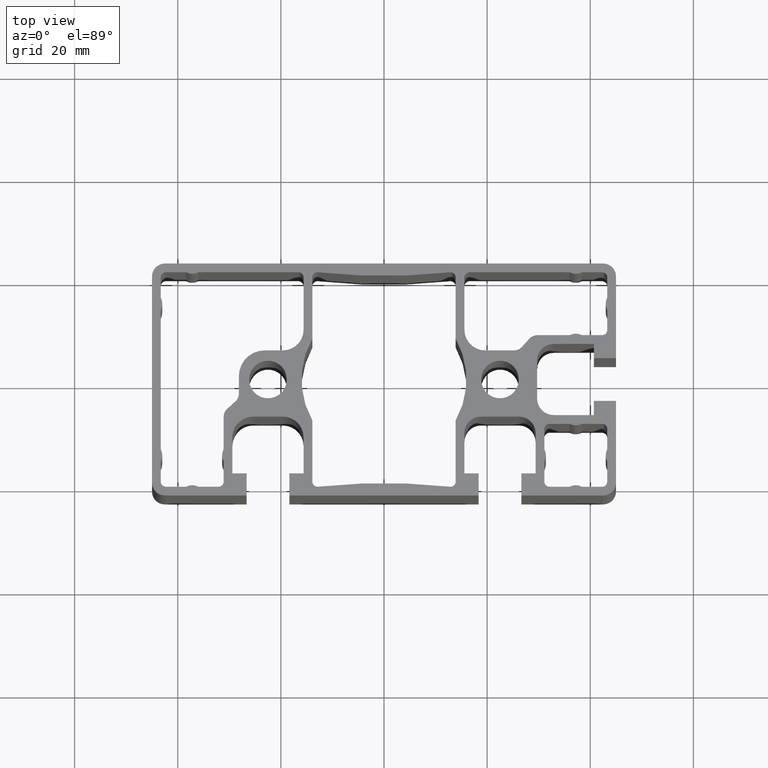
[diagram: clean part render]
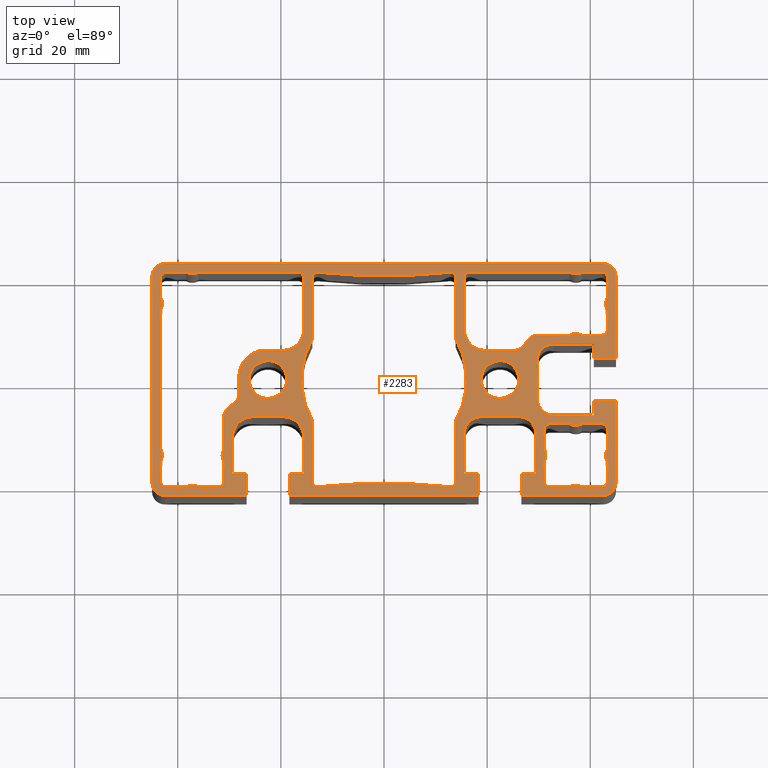
[diagram: same view with one face highlighted and labeled with its STEP entity id]
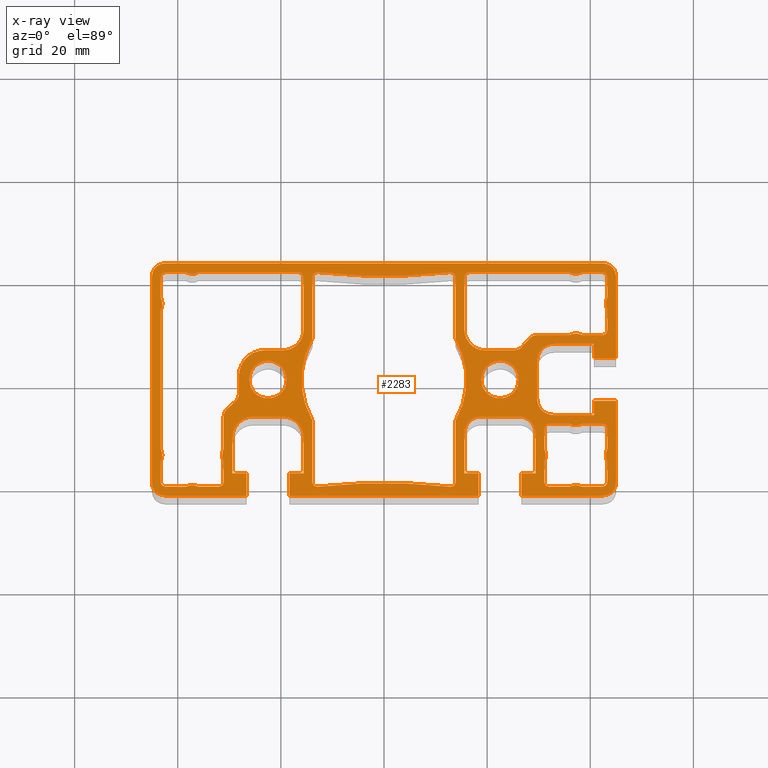
[diagram: x-ray of the same camera — body ghosted, the highlighted face saturated]
A machine part, top view. The second image highlights one B-rep face of the part: STEP entity #2283.
The next image is the same camera in x-ray: the body ghosted, the highlighted face saturated — about 0% of this face is hidden behind the body in this view.
In plain terms, the highlighted planar face has unit normal (0, 0, 1).
Its self-contained STEP definition (entity closure, byte-faithful):
#17=FACE_BOUND('',#314,.T.);
#18=FACE_BOUND('',#315,.T.);
#19=FACE_BOUND('',#316,.T.);
#20=FACE_BOUND('',#317,.T.);
#21=FACE_BOUND('',#318,.T.);
#22=FACE_BOUND('',#319,.T.);
#87=PLANE('',#2491);
#197=FACE_OUTER_BOUND('',#313,.T.);
#313=EDGE_LOOP('',(#1873,#1874,#1875,#1876,#1877,#1878,#1879,#1880,#1881,
#1882,#1883,#1884,#1885,#1886,#1887,#1888,#1889,#1890,#1891,#1892,#1893,
#1894,#1895,#1896,#1897,#1898,#1899,#1900,#1901,#1902,#1903,#1904,#1905,
#1906,#1907,#1908,#1909,#1910));
#314=EDGE_LOOP('',(#1911,#1912,#1913,#1914,#1915,#1916,#1917,#1918,#1919,
#1920,#1921,#1922,#1923,#1924,#1925,#1926));
#315=EDGE_LOOP('',(#1927));
#316=EDGE_LOOP('',(#1928));
#317=EDGE_LOOP('',(#1929,#1930,#1931,#1932,#1933,#1934,#1935,#1936,#1937,
#1938,#1939,#1940,#1941,#1942,#1943,#1944,#1945,#1946));
#318=EDGE_LOOP('',(#1947,#1948,#1949,#1950,#1951,#1952,#1953,#1954,#1955,
#1956,#1957,#1958));
#319=EDGE_LOOP('',(#1959,#1960,#1961,#1962,#1963,#1964,#1965,#1966,#1967,
#1968,#1969,#1970,#1971,#1972,#1973,#1974,#1975,#1976,#1977,#1978,#1979,
#1980,#1981,#1982,#1983,#1984));
#337=LINE('',#3185,#571);
#341=LINE('',#3197,#575);
#345=LINE('',#3209,#579);
#349=LINE('',#3221,#583);
#353=LINE('',#3233,#587);
#357=LINE('',#3245,#591);
#361=LINE('',#3257,#595);
#365=LINE('',#3269,#599);
#369=LINE('',#3281,#603);
#373=LINE('',#3293,#607);
#377=LINE('',#3305,#611);
#381=LINE('',#3317,#615);
#385=LINE('',#3328,#619);
#389=LINE('',#3341,#623);
#395=LINE('',#3365,#629);
#399=LINE('',#3377,#633);
#405=LINE('',#3400,#639);
#407=LINE('',#3405,#641);
#412=LINE('',#3419,#646);
#416=LINE('',#3431,#650);
#420=LINE('',#3443,#654);
#424=LINE('',#3455,#658);
#428=LINE('',#3467,#662);
#432=LINE('',#3479,#666);
#436=LINE('',#3491,#670);
#440=LINE('',#3503,#674);
#443=LINE('',#3518,#677);
#447=LINE('',#3527,#681);
#451=LINE('',#3535,#685);
#454=LINE('',#3541,#688);
#458=LINE('',#3553,#692);
#462=LINE('',#3565,#696);
#465=LINE('',#3570,#699);
#467=LINE('',#3575,#701);
#471=LINE('',#3584,#705);
#475=LINE('',#3592,#709);
#478=LINE('',#3598,#712);
#482=LINE('',#3610,#716);
#486=LINE('',#3622,#720);
#489=LINE('',#3627,#723);
#491=LINE('',#3632,#725);
#496=LINE('',#3646,#730);
#499=LINE('',#3652,#733);
#502=LINE('',#3658,#736);
#505=LINE('',#3665,#739);
#509=LINE('',#3673,#743);
#512=LINE('',#3679,#746);
#515=LINE('',#3694,#749);
#520=LINE('',#3708,#754);
#524=LINE('',#3720,#758);
#528=LINE('',#3732,#762);
#532=LINE('',#3744,#766);
#536=LINE('',#3756,#770);
#540=LINE('',#3768,#774);
#544=LINE('',#3780,#778);
#549=LINE('',#3792,#783);
#550=LINE('',#3795,#784);
#553=LINE('',#3801,#787);
#556=LINE('',#3808,#790);
#557=LINE('',#3812,#791);
#558=LINE('',#3816,#792);
#559=LINE('',#3818,#793);
#571=VECTOR('',#2521,3.91256579129625);
#575=VECTOR('',#2533,3.91256579129628);
#579=VECTOR('',#2545,3.91256579129605);
#583=VECTOR('',#2557,27.0251315825923);
#587=VECTOR('',#2569,3.91256579129619);
#591=VECTOR('',#2581,3.91256579129608);
#595=VECTOR('',#2593,19.4125657912961);
#599=VECTOR('',#2605,10.15);
#603=VECTOR('',#2617,3.54999999999999);
#607=VECTOR('',#2629,3.40954262938306);
#611=VECTOR('',#2641,2.18870181110454);
#615=VECTOR('',#2653,6.31591649000035);
#619=VECTOR('',#2665,3.9125657912961);
#623=VECTOR('',#2677,11.875985865737);
#629=VECTOR('',#2703,11.875985865737);
#633=VECTOR('',#2715,11.875985865737);
#639=VECTOR('',#2741,11.8759858657368);
#641=VECTOR('',#2745,3.91256579129616);
#646=VECTOR('',#2758,3.91256579129612);
#650=VECTOR('',#2770,3.91256579129614);
#654=VECTOR('',#2782,3.91256579129625);
#658=VECTOR('',#2794,19.4125657912962);
#662=VECTOR('',#2806,10.15);
#666=VECTOR('',#2818,5.65954262938295);
#670=VECTOR('',#2830,2.18870181110482);
#674=VECTOR('',#2842,6.31591649000063);
#677=VECTOR('',#2859,4.29999999999993);
#681=VECTOR('',#2865,4.30000000000009);
#685=VECTOR('',#2871,2.75000000000002);
#688=VECTOR('',#2876,7.8000000000001);
#692=VECTOR('',#2888,7.40000000000006);
#696=VECTOR('',#2900,7.79999999999994);
#699=VECTOR('',#2905,2.74999999999992);
#701=VECTOR('',#2909,4.29999999999993);
#705=VECTOR('',#2915,4.30000000000012);
#709=VECTOR('',#2921,2.75000000000004);
#712=VECTOR('',#2926,6.99999999999996);
#716=VECTOR('',#2938,5.80000000000002);
#720=VECTOR('',#2950,7.00000000000008);
#723=VECTOR('',#2955,2.74999999999991);
#725=VECTOR('',#2959,7.40000000000007);
#730=VECTOR('',#2972,7.79999999999998);
#733=VECTOR('',#2977,2.75);
#736=VECTOR('',#2982,4.30000000000005);
#739=VECTOR('',#2987,4.30000000000001);
#743=VECTOR('',#2993,2.75000000000013);
#746=VECTOR('',#2998,7.80000000000005);
#749=VECTOR('',#3015,3.91256579129625);
#754=VECTOR('',#3028,3.91256579129616);
#758=VECTOR('',#3040,3.91256579129616);
#762=VECTOR('',#3052,3.91256579129614);
#766=VECTOR('',#3064,3.91256579129614);
#770=VECTOR('',#3076,3.9125657912963);
#774=VECTOR('',#3088,3.91256579129639);
#778=VECTOR('',#3100,3.91256579129633);
#783=VECTOR('',#3113,15.8500000000002);
#784=VECTOR('',#3116,15.8499999999998);
#787=VECTOR('',#3121,15.85);
#790=VECTOR('',#3128,15.85);
#791=VECTOR('',#3131,85.);
#792=VECTOR('',#3134,40.);
#793=VECTOR('',#3137,36.7);
#803=CIRCLE('',#2296,1.);
#805=CIRCLE('',#2300,2.49999999999984);
#807=CIRCLE('',#2304,1.);
#809=CIRCLE('',#2308,2.50000000000002);
#811=CIRCLE('',#2312,2.49999999999994);
#813=CIRCLE('',#2316,1.);
#815=CIRCLE('',#2320,2.49999999999994);
#817=CIRCLE('',#2324,1.);
#819=CIRCLE('',#2328,4.);
#821=CIRCLE('',#2332,5.);
#823=CIRCLE('',#2336,2.00000000000003);
#825=CIRCLE('',#2340,2.00000000000002);
#827=CIRCLE('',#2344,2.49999999999983);
#829=CIRCLE('',#2348,15.9999999999999);
#831=CIRCLE('',#2352,1.00000000000003);
#833=CIRCLE('',#2355,116.8);
#835=CIRCLE('',#2358,1.00000000000007);
#837=CIRCLE('',#2362,16.);
#839=CIRCLE('',#2366,0.999999999999974);
#841=CIRCLE('',#2369,116.8);
#843=CIRCLE('',#2372,0.999999999999973);
#845=CIRCLE('',#2377,1.);
#847=CIRCLE('',#2381,2.49999999999998);
#849=CIRCLE('',#2385,1.);
#851=CIRCLE('',#2389,2.49999999999992);
#853=CIRCLE('',#2393,1.);
#855=CIRCLE('',#2397,4.);
#857=CIRCLE('',#2401,1.99999999999999);
#859=CIRCLE('',#2405,1.99999999999994);
#861=CIRCLE('',#2409,2.49999999999987);
#864=CIRCLE('',#2413,3.65);
#865=CIRCLE('',#2419,3.19999999999999);
#867=CIRCLE('',#2423,3.19999999999998);
#869=CIRCLE('',#2432,4.);
#871=CIRCLE('',#2436,4.);
#873=CIRCLE('',#2442,3.19999999999998);
#875=CIRCLE('',#2451,3.19999999999999);
#878=CIRCLE('',#2455,3.65);
#879=CIRCLE('',#2458,2.49999999999985);
#881=CIRCLE('',#2462,0.999999999999999);
#883=CIRCLE('',#2466,2.49999999999999);
#885=CIRCLE('',#2470,0.999999999999999);
#887=CIRCLE('',#2474,2.49999999999976);
#889=CIRCLE('',#2478,1.);
#891=CIRCLE('',#2482,2.49999999999979);
#893=CIRCLE('',#2486,1.);
#895=CIRCLE('',#2492,2.5);
#896=CIRCLE('',#2493,2.5);
#897=CIRCLE('',#2494,2.5);
#898=CIRCLE('',#2495,2.5);
#903=VERTEX_POINT('',#3175);
#904=VERTEX_POINT('',#3176);
#907=VERTEX_POINT('',#3184);
#909=VERTEX_POINT('',#3190);
#911=VERTEX_POINT('',#3196);
#913=VERTEX_POINT('',#3202);
#915=VERTEX_POINT('',#3208);
#917=VERTEX_POINT('',#3214);
#919=VERTEX_POINT('',#3220);
#921=VERTEX_POINT('',#3226);
#923=VERTEX_POINT('',#3232);
#925=VERTEX_POINT('',#3238);
#927=VERTEX_POINT('',#3244);
#929=VERTEX_POINT('',#3250);
#931=VERTEX_POINT('',#3256);
#933=VERTEX_POINT('',#3262);
#935=VERTEX_POINT('',#3268);
#937=VERTEX_POINT('',#3274);
#939=VERTEX_POINT('',#3280);
#941=VERTEX_POINT('',#3286);
#943=VERTEX_POINT('',#3292);
#945=VERTEX_POINT('',#3298);
#947=VERTEX_POINT('',#3304);
#949=VERTEX_POINT('',#3310);
#951=VERTEX_POINT('',#3316);
#953=VERTEX_POINT('',#3322);
#955=VERTEX_POINT('',#3331);
#956=VERTEX_POINT('',#3332);
#959=VERTEX_POINT('',#3340);
#961=VERTEX_POINT('',#3346);
#963=VERTEX_POINT('',#3352);
#965=VERTEX_POINT('',#3358);
#967=VERTEX_POINT('',#3364);
#969=VERTEX_POINT('',#3370);
#971=VERTEX_POINT('',#3376);
#973=VERTEX_POINT('',#3382);
#975=VERTEX_POINT('',#3388);
#977=VERTEX_POINT('',#3394);
#979=VERTEX_POINT('',#3403);
#980=VERTEX_POINT('',#3404);
#983=VERTEX_POINT('',#3412);
#985=VERTEX_POINT('',#3418);
#987=VERTEX_POINT('',#3424);
#989=VERTEX_POINT('',#3430);
#991=VERTEX_POINT('',#3436);
#993=VERTEX_POINT('',#3442);
#995=VERTEX_POINT('',#3448);
#997=VERTEX_POINT('',#3454);
#999=VERTEX_POINT('',#3460);
#1001=VERTEX_POINT('',#3466);
#1003=VERTEX_POINT('',#3472);
#1005=VERTEX_POINT('',#3478);
#1007=VERTEX_POINT('',#3484);
#1009=VERTEX_POINT('',#3490);
#1011=VERTEX_POINT('',#3496);
#1013=VERTEX_POINT('',#3502);
#1016=VERTEX_POINT('',#3513);
#1017=VERTEX_POINT('',#3516);
#1018=VERTEX_POINT('',#3517);
#1021=VERTEX_POINT('',#3525);
#1022=VERTEX_POINT('',#3526);
#1025=VERTEX_POINT('',#3534);
#1027=VERTEX_POINT('',#3540);
#1029=VERTEX_POINT('',#3546);
#1031=VERTEX_POINT('',#3552);
#1033=VERTEX_POINT('',#3558);
#1035=VERTEX_POINT('',#3564);
#1037=VERTEX_POINT('',#3573);
#1038=VERTEX_POINT('',#3574);
#1041=VERTEX_POINT('',#3582);
#1042=VERTEX_POINT('',#3583);
#1045=VERTEX_POINT('',#3591);
#1047=VERTEX_POINT('',#3597);
#1049=VERTEX_POINT('',#3603);
#1051=VERTEX_POINT('',#3609);
#1053=VERTEX_POINT('',#3615);
#1055=VERTEX_POINT('',#3621);
#1057=VERTEX_POINT('',#3630);
#1058=VERTEX_POINT('',#3631);
#1061=VERTEX_POINT('',#3639);
#1063=VERTEX_POINT('',#3645);
#1065=VERTEX_POINT('',#3651);
#1067=VERTEX_POINT('',#3657);
#1069=VERTEX_POINT('',#3663);
#1070=VERTEX_POINT('',#3664);
#1073=VERTEX_POINT('',#3672);
#1075=VERTEX_POINT('',#3678);
#1078=VERTEX_POINT('',#3689);
#1079=VERTEX_POINT('',#3692);
#1080=VERTEX_POINT('',#3693);
#1083=VERTEX_POINT('',#3701);
#1085=VERTEX_POINT('',#3707);
#1087=VERTEX_POINT('',#3713);
#1089=VERTEX_POINT('',#3719);
#1091=VERTEX_POINT('',#3725);
#1093=VERTEX_POINT('',#3731);
#1095=VERTEX_POINT('',#3737);
#1097=VERTEX_POINT('',#3743);
#1099=VERTEX_POINT('',#3749);
#1101=VERTEX_POINT('',#3755);
#1103=VERTEX_POINT('',#3761);
#1105=VERTEX_POINT('',#3767);
#1107=VERTEX_POINT('',#3773);
#1109=VERTEX_POINT('',#3779);
#1112=VERTEX_POINT('',#3790);
#1113=VERTEX_POINT('',#3794);
#1115=VERTEX_POINT('',#3800);
#1117=VERTEX_POINT('',#3807);
#1118=VERTEX_POINT('',#3809);
#1119=VERTEX_POINT('',#3811);
#1120=VERTEX_POINT('',#3813);
#1121=VERTEX_POINT('',#3815);
#1127=EDGE_CURVE('',#903,#904,#803,.T.);
#1131=EDGE_CURVE('',#904,#907,#337,.T.);
#1134=EDGE_CURVE('',#907,#909,#805,.T.);
#1137=EDGE_CURVE('',#909,#911,#341,.T.);
#1140=EDGE_CURVE('',#911,#913,#807,.T.);
#1143=EDGE_CURVE('',#913,#915,#345,.T.);
#1146=EDGE_CURVE('',#915,#917,#809,.T.);
#1149=EDGE_CURVE('',#917,#919,#349,.T.);
#1152=EDGE_CURVE('',#919,#921,#811,.T.);
#1155=EDGE_CURVE('',#921,#923,#353,.T.);
#1158=EDGE_CURVE('',#923,#925,#813,.T.);
#1161=EDGE_CURVE('',#925,#927,#357,.T.);
#1164=EDGE_CURVE('',#927,#929,#815,.T.);
#1167=EDGE_CURVE('',#929,#931,#361,.T.);
#1170=EDGE_CURVE('',#931,#933,#817,.T.);
#1173=EDGE_CURVE('',#933,#935,#365,.T.);
#1176=EDGE_CURVE('',#935,#937,#819,.T.);
#1179=EDGE_CURVE('',#937,#939,#369,.T.);
#1182=EDGE_CURVE('',#939,#941,#821,.T.);
#1185=EDGE_CURVE('',#941,#943,#373,.T.);
#1188=EDGE_CURVE('',#943,#945,#823,.T.);
#1191=EDGE_CURVE('',#945,#947,#377,.T.);
#1194=EDGE_CURVE('',#947,#949,#825,.T.);
#1197=EDGE_CURVE('',#949,#951,#381,.T.);
#1200=EDGE_CURVE('',#951,#953,#827,.T.);
#1203=EDGE_CURVE('',#953,#903,#385,.T.);
#1205=EDGE_CURVE('',#955,#956,#829,.T.);
#1209=EDGE_CURVE('',#956,#959,#389,.T.);
#1212=EDGE_CURVE('',#959,#961,#831,.T.);
#1215=EDGE_CURVE('',#961,#963,#833,.T.);
#1218=EDGE_CURVE('',#963,#965,#835,.T.);
#1221=EDGE_CURVE('',#965,#967,#395,.T.);
#1224=EDGE_CURVE('',#967,#969,#837,.T.);
#1227=EDGE_CURVE('',#969,#971,#399,.T.);
#1230=EDGE_CURVE('',#971,#973,#839,.T.);
#1233=EDGE_CURVE('',#973,#975,#841,.T.);
#1236=EDGE_CURVE('',#975,#977,#843,.T.);
#1239=EDGE_CURVE('',#977,#955,#405,.T.);
#1241=EDGE_CURVE('',#979,#980,#407,.T.);
#1245=EDGE_CURVE('',#983,#979,#845,.T.);
#1248=EDGE_CURVE('',#985,#983,#412,.T.);
#1251=EDGE_CURVE('',#987,#985,#847,.T.);
#1254=EDGE_CURVE('',#989,#987,#416,.T.);
#1257=EDGE_CURVE('',#991,#989,#849,.T.);
#1260=EDGE_CURVE('',#993,#991,#420,.T.);
#1263=EDGE_CURVE('',#995,#993,#851,.T.);
#1266=EDGE_CURVE('',#997,#995,#424,.T.);
#1269=EDGE_CURVE('',#999,#997,#853,.T.);
#1272=EDGE_CURVE('',#1001,#999,#428,.T.);
#1275=EDGE_CURVE('',#1003,#1001,#855,.T.);
#1278=EDGE_CURVE('',#1005,#1003,#432,.T.);
#1281=EDGE_CURVE('',#1007,#1005,#857,.T.);
#1284=EDGE_CURVE('',#1009,#1007,#436,.T.);
#1287=EDGE_CURVE('',#1011,#1009,#859,.T.);
#1290=EDGE_CURVE('',#1013,#1011,#440,.T.);
#1293=EDGE_CURVE('',#980,#1013,#861,.T.);
#1296=EDGE_CURVE('',#1016,#1016,#864,.T.);
#1297=EDGE_CURVE('',#1017,#1018,#443,.T.);
#1301=EDGE_CURVE('',#1021,#1022,#447,.T.);
#1305=EDGE_CURVE('',#1025,#1021,#451,.T.);
#1308=EDGE_CURVE('',#1027,#1025,#454,.T.);
#1311=EDGE_CURVE('',#1029,#1027,#865,.T.);
#1314=EDGE_CURVE('',#1031,#1029,#458,.T.);
#1317=EDGE_CURVE('',#1033,#1031,#867,.T.);
#1320=EDGE_CURVE('',#1035,#1033,#462,.T.);
#1323=EDGE_CURVE('',#1018,#1035,#465,.T.);
#1325=EDGE_CURVE('',#1037,#1038,#467,.T.);
#1329=EDGE_CURVE('',#1041,#1042,#471,.T.);
#1333=EDGE_CURVE('',#1042,#1045,#475,.T.);
#1336=EDGE_CURVE('',#1045,#1047,#478,.T.);
#1339=EDGE_CURVE('',#1047,#1049,#869,.T.);
#1342=EDGE_CURVE('',#1049,#1051,#482,.T.);
#1345=EDGE_CURVE('',#1051,#1053,#871,.T.);
#1348=EDGE_CURVE('',#1053,#1055,#486,.T.);
#1351=EDGE_CURVE('',#1055,#1037,#489,.T.);
#1353=EDGE_CURVE('',#1057,#1058,#491,.T.);
#1357=EDGE_CURVE('',#1061,#1057,#873,.T.);
#1360=EDGE_CURVE('',#1063,#1061,#496,.T.);
#1363=EDGE_CURVE('',#1065,#1063,#499,.T.);
#1366=EDGE_CURVE('',#1067,#1065,#502,.T.);
#1369=EDGE_CURVE('',#1069,#1070,#505,.T.);
#1373=EDGE_CURVE('',#1073,#1069,#509,.T.);
#1376=EDGE_CURVE('',#1075,#1073,#512,.T.);
#1379=EDGE_CURVE('',#1058,#1075,#875,.T.);
#1382=EDGE_CURVE('',#1078,#1078,#878,.T.);
#1383=EDGE_CURVE('',#1079,#1080,#515,.T.);
#1387=EDGE_CURVE('',#1083,#1079,#879,.T.);
#1390=EDGE_CURVE('',#1085,#1083,#520,.T.);
#1393=EDGE_CURVE('',#1087,#1085,#881,.T.);
#1396=EDGE_CURVE('',#1089,#1087,#524,.T.);
#1399=EDGE_CURVE('',#1091,#1089,#883,.T.);
#1402=EDGE_CURVE('',#1093,#1091,#528,.T.);
#1405=EDGE_CURVE('',#1095,#1093,#885,.T.);
#1408=EDGE_CURVE('',#1097,#1095,#532,.T.);
#1411=EDGE_CURVE('',#1099,#1097,#887,.T.);
#1414=EDGE_CURVE('',#1101,#1099,#536,.T.);
#1417=EDGE_CURVE('',#1103,#1101,#889,.T.);
#1420=EDGE_CURVE('',#1105,#1103,#540,.T.);
#1423=EDGE_CURVE('',#1107,#1105,#891,.T.);
#1426=EDGE_CURVE('',#1109,#1107,#544,.T.);
#1429=EDGE_CURVE('',#1080,#1109,#893,.T.);
#1433=EDGE_CURVE('',#1112,#1022,#549,.T.);
#1434=EDGE_CURVE('',#1041,#1113,#550,.T.);
#1437=EDGE_CURVE('',#1067,#1115,#553,.T.);
#1440=EDGE_CURVE('',#1115,#1112,#895,.T.);
#1441=EDGE_CURVE('',#1117,#1070,#556,.T.);
#1442=EDGE_CURVE('',#1118,#1117,#896,.T.);
#1443=EDGE_CURVE('',#1119,#1118,#557,.T.);
#1444=EDGE_CURVE('',#1120,#1119,#897,.T.);
#1445=EDGE_CURVE('',#1121,#1120,#558,.T.);
#1446=EDGE_CURVE('',#1113,#1121,#898,.T.);
#1447=EDGE_CURVE('',#1017,#1038,#559,.T.);
#1873=ORIENTED_EDGE('',*,*,#1297,.T.);
#1874=ORIENTED_EDGE('',*,*,#1323,.T.);
#1875=ORIENTED_EDGE('',*,*,#1320,.T.);
#1876=ORIENTED_EDGE('',*,*,#1317,.T.);
#1877=ORIENTED_EDGE('',*,*,#1314,.T.);
#1878=ORIENTED_EDGE('',*,*,#1311,.T.);
#1879=ORIENTED_EDGE('',*,*,#1308,.T.);
#1880=ORIENTED_EDGE('',*,*,#1305,.T.);
#1881=ORIENTED_EDGE('',*,*,#1301,.T.);
#1882=ORIENTED_EDGE('',*,*,#1433,.F.);
#1883=ORIENTED_EDGE('',*,*,#1440,.F.);
#1884=ORIENTED_EDGE('',*,*,#1437,.F.);
#1885=ORIENTED_EDGE('',*,*,#1366,.T.);
#1886=ORIENTED_EDGE('',*,*,#1363,.T.);
#1887=ORIENTED_EDGE('',*,*,#1360,.T.);
#1888=ORIENTED_EDGE('',*,*,#1357,.T.);
#1889=ORIENTED_EDGE('',*,*,#1353,.T.);
#1890=ORIENTED_EDGE('',*,*,#1379,.T.);
#1891=ORIENTED_EDGE('',*,*,#1376,.T.);
#1892=ORIENTED_EDGE('',*,*,#1373,.T.);
#1893=ORIENTED_EDGE('',*,*,#1369,.T.);
#1894=ORIENTED_EDGE('',*,*,#1441,.F.);
#1895=ORIENTED_EDGE('',*,*,#1442,.F.);
#1896=ORIENTED_EDGE('',*,*,#1443,.F.);
#1897=ORIENTED_EDGE('',*,*,#1444,.F.);
#1898=ORIENTED_EDGE('',*,*,#1445,.F.);
#1899=ORIENTED_EDGE('',*,*,#1446,.F.);
#1900=ORIENTED_EDGE('',*,*,#1434,.F.);
#1901=ORIENTED_EDGE('',*,*,#1329,.T.);
#1902=ORIENTED_EDGE('',*,*,#1333,.T.);
#1903=ORIENTED_EDGE('',*,*,#1336,.T.);
#1904=ORIENTED_EDGE('',*,*,#1339,.T.);
#1905=ORIENTED_EDGE('',*,*,#1342,.T.);
#1906=ORIENTED_EDGE('',*,*,#1345,.T.);
#1907=ORIENTED_EDGE('',*,*,#1348,.T.);
#1908=ORIENTED_EDGE('',*,*,#1351,.T.);
#1909=ORIENTED_EDGE('',*,*,#1325,.T.);
#1910=ORIENTED_EDGE('',*,*,#1447,.F.);
#1911=ORIENTED_EDGE('',*,*,#1383,.T.);
#1912=ORIENTED_EDGE('',*,*,#1429,.T.);
#1913=ORIENTED_EDGE('',*,*,#1426,.T.);
#1914=ORIENTED_EDGE('',*,*,#1423,.T.);
#1915=ORIENTED_EDGE('',*,*,#1420,.T.);
#1916=ORIENTED_EDGE('',*,*,#1417,.T.);
#1917=ORIENTED_EDGE('',*,*,#1414,.T.);
#1918=ORIENTED_EDGE('',*,*,#1411,.T.);
#1919=ORIENTED_EDGE('',*,*,#1408,.T.);
#1920=ORIENTED_EDGE('',*,*,#1405,.T.);
#1921=ORIENTED_EDGE('',*,*,#1402,.T.);
#1922=ORIENTED_EDGE('',*,*,#1399,.T.);
#1923=ORIENTED_EDGE('',*,*,#1396,.T.);
#1924=ORIENTED_EDGE('',*,*,#1393,.T.);
#1925=ORIENTED_EDGE('',*,*,#1390,.T.);
#1926=ORIENTED_EDGE('',*,*,#1387,.T.);
#1927=ORIENTED_EDGE('',*,*,#1382,.T.);
#1928=ORIENTED_EDGE('',*,*,#1296,.T.);
#1929=ORIENTED_EDGE('',*,*,#1241,.T.);
#1930=ORIENTED_EDGE('',*,*,#1293,.T.);
#1931=ORIENTED_EDGE('',*,*,#1290,.T.);
#1932=ORIENTED_EDGE('',*,*,#1287,.T.);
#1933=ORIENTED_EDGE('',*,*,#1284,.T.);
#1934=ORIENTED_EDGE('',*,*,#1281,.T.);
#1935=ORIENTED_EDGE('',*,*,#1278,.T.);
#1936=ORIENTED_EDGE('',*,*,#1275,.T.);
#1937=ORIENTED_EDGE('',*,*,#1272,.T.);
#1938=ORIENTED_EDGE('',*,*,#1269,.T.);
#1939=ORIENTED_EDGE('',*,*,#1266,.T.);
#1940=ORIENTED_EDGE('',*,*,#1263,.T.);
#1941=ORIENTED_EDGE('',*,*,#1260,.T.);
#1942=ORIENTED_EDGE('',*,*,#1257,.T.);
#1943=ORIENTED_EDGE('',*,*,#1254,.T.);
#1944=ORIENTED_EDGE('',*,*,#1251,.T.);
#1945=ORIENTED_EDGE('',*,*,#1248,.T.);
#1946=ORIENTED_EDGE('',*,*,#1245,.T.);
#1947=ORIENTED_EDGE('',*,*,#1205,.T.);
#1948=ORIENTED_EDGE('',*,*,#1209,.T.);
#1949=ORIENTED_EDGE('',*,*,#1212,.T.);
#1950=ORIENTED_EDGE('',*,*,#1215,.T.);
#1951=ORIENTED_EDGE('',*,*,#1218,.T.);
#1952=ORIENTED_EDGE('',*,*,#1221,.T.);
#1953=ORIENTED_EDGE('',*,*,#1224,.T.);
#1954=ORIENTED_EDGE('',*,*,#1227,.T.);
#1955=ORIENTED_EDGE('',*,*,#1230,.T.);
#1956=ORIENTED_EDGE('',*,*,#1233,.T.);
#1957=ORIENTED_EDGE('',*,*,#1236,.T.);
#1958=ORIENTED_EDGE('',*,*,#1239,.T.);
#1959=ORIENTED_EDGE('',*,*,#1127,.T.);
#1960=ORIENTED_EDGE('',*,*,#1131,.T.);
#1961=ORIENTED_EDGE('',*,*,#1134,.T.);
#1962=ORIENTED_EDGE('',*,*,#1137,.T.);
#1963=ORIENTED_EDGE('',*,*,#1140,.T.);
#1964=ORIENTED_EDGE('',*,*,#1143,.T.);
#1965=ORIENTED_EDGE('',*,*,#1146,.T.);
#1966=ORIENTED_EDGE('',*,*,#1149,.T.);
#1967=ORIENTED_EDGE('',*,*,#1152,.T.);
#1968=ORIENTED_EDGE('',*,*,#1155,.T.);
#1969=ORIENTED_EDGE('',*,*,#1158,.T.);
#1970=ORIENTED_EDGE('',*,*,#1161,.T.);
#1971=ORIENTED_EDGE('',*,*,#1164,.T.);
#1972=ORIENTED_EDGE('',*,*,#1167,.T.);
#1973=ORIENTED_EDGE('',*,*,#1170,.T.);
#1974=ORIENTED_EDGE('',*,*,#1173,.T.);
#1975=ORIENTED_EDGE('',*,*,#1176,.T.);
#1976=ORIENTED_EDGE('',*,*,#1179,.T.);
#1977=ORIENTED_EDGE('',*,*,#1182,.T.);
#1978=ORIENTED_EDGE('',*,*,#1185,.T.);
#1979=ORIENTED_EDGE('',*,*,#1188,.T.);
#1980=ORIENTED_EDGE('',*,*,#1191,.T.);
#1981=ORIENTED_EDGE('',*,*,#1194,.T.);
#1982=ORIENTED_EDGE('',*,*,#1197,.T.);
#1983=ORIENTED_EDGE('',*,*,#1200,.T.);
#1984=ORIENTED_EDGE('',*,*,#1203,.T.);
#2283=ADVANCED_FACE('',(#197,#17,#18,#19,#20,#21,#22),#87,.T.);
#2296=AXIS2_PLACEMENT_3D('',#3177,#2513,#2514);
#2300=AXIS2_PLACEMENT_3D('',#3191,#2526,#2527);
#2304=AXIS2_PLACEMENT_3D('',#3203,#2538,#2539);
#2308=AXIS2_PLACEMENT_3D('',#3215,#2550,#2551);
#2312=AXIS2_PLACEMENT_3D('',#3227,#2562,#2563);
#2316=AXIS2_PLACEMENT_3D('',#3239,#2574,#2575);
#2320=AXIS2_PLACEMENT_3D('',#3251,#2586,#2587);
#2324=AXIS2_PLACEMENT_3D('',#3263,#2598,#2599);
#2328=AXIS2_PLACEMENT_3D('',#3275,#2610,#2611);
#2332=AXIS2_PLACEMENT_3D('',#3287,#2622,#2623);
#2336=AXIS2_PLACEMENT_3D('',#3299,#2634,#2635);
#2340=AXIS2_PLACEMENT_3D('',#3311,#2646,#2647);
#2344=AXIS2_PLACEMENT_3D('',#3323,#2658,#2659);
#2348=AXIS2_PLACEMENT_3D('',#3333,#2669,#2670);
#2352=AXIS2_PLACEMENT_3D('',#3347,#2682,#2683);
#2355=AXIS2_PLACEMENT_3D('',#3353,#2689,#2690);
#2358=AXIS2_PLACEMENT_3D('',#3359,#2696,#2697);
#2362=AXIS2_PLACEMENT_3D('',#3371,#2708,#2709);
#2366=AXIS2_PLACEMENT_3D('',#3383,#2720,#2721);
#2369=AXIS2_PLACEMENT_3D('',#3389,#2727,#2728);
#2372=AXIS2_PLACEMENT_3D('',#3395,#2734,#2735);
#2377=AXIS2_PLACEMENT_3D('',#3413,#2751,#2752);
#2381=AXIS2_PLACEMENT_3D('',#3425,#2763,#2764);
#2385=AXIS2_PLACEMENT_3D('',#3437,#2775,#2776);
#2389=AXIS2_PLACEMENT_3D('',#3449,#2787,#2788);
#2393=AXIS2_PLACEMENT_3D('',#3461,#2799,#2800);
#2397=AXIS2_PLACEMENT_3D('',#3473,#2811,#2812);
#2401=AXIS2_PLACEMENT_3D('',#3485,#2823,#2824);
#2405=AXIS2_PLACEMENT_3D('',#3497,#2835,#2836);
#2409=AXIS2_PLACEMENT_3D('',#3508,#2847,#2848);
#2413=AXIS2_PLACEMENT_3D('',#3514,#2855,#2856);
#2419=AXIS2_PLACEMENT_3D('',#3547,#2881,#2882);
#2423=AXIS2_PLACEMENT_3D('',#3559,#2893,#2894);
#2432=AXIS2_PLACEMENT_3D('',#3604,#2931,#2932);
#2436=AXIS2_PLACEMENT_3D('',#3616,#2943,#2944);
#2442=AXIS2_PLACEMENT_3D('',#3640,#2965,#2966);
#2451=AXIS2_PLACEMENT_3D('',#3684,#3003,#3004);
#2455=AXIS2_PLACEMENT_3D('',#3690,#3011,#3012);
#2458=AXIS2_PLACEMENT_3D('',#3702,#3021,#3022);
#2462=AXIS2_PLACEMENT_3D('',#3714,#3033,#3034);
#2466=AXIS2_PLACEMENT_3D('',#3726,#3045,#3046);
#2470=AXIS2_PLACEMENT_3D('',#3738,#3057,#3058);
#2474=AXIS2_PLACEMENT_3D('',#3750,#3069,#3070);
#2478=AXIS2_PLACEMENT_3D('',#3762,#3081,#3082);
#2482=AXIS2_PLACEMENT_3D('',#3774,#3093,#3094);
#2486=AXIS2_PLACEMENT_3D('',#3785,#3105,#3106);
#2491=AXIS2_PLACEMENT_3D('',#3805,#3124,#3125);
#2492=AXIS2_PLACEMENT_3D('',#3806,#3126,#3127);
#2493=AXIS2_PLACEMENT_3D('',#3810,#3129,#3130);
#2494=AXIS2_PLACEMENT_3D('',#3814,#3132,#3133);
#2495=AXIS2_PLACEMENT_3D('',#3817,#3135,#3136);
#2513=DIRECTION('center_axis',(0.,0.,-1.));
#2514=DIRECTION('ref_axis',(-8.88178419700121E-15,-1.,0.));
#2521=DIRECTION('',(-1.,5.44815939459023E-14,0.));
#2526=DIRECTION('center_axis',(0.,0.,1.));
#2527=DIRECTION('ref_axis',(-0.47497368348155,-0.879999999999982,0.));
#2533=DIRECTION('',(-1.,-1.81605313153006E-14,0.));
#2538=DIRECTION('center_axis',(0.,0.,-1.));
#2539=DIRECTION('ref_axis',(-1.,8.88178419700129E-14,0.));
#2545=DIRECTION('',(4.54013282882542E-15,1.,0.));
#2550=DIRECTION('center_axis',(0.,0.,1.));
#2551=DIRECTION('ref_axis',(-0.879999999999985,0.474973683481544,0.));
#2557=DIRECTION('',(1.97189438353498E-15,1.,0.));
#2562=DIRECTION('center_axis',(0.,0.,1.));
#2563=DIRECTION('ref_axis',(-0.879999999999984,0.474973683481546,0.));
#2569=DIRECTION('',(-2.27006641441263E-14,1.,0.));
#2574=DIRECTION('center_axis',(0.,0.,-1.));
#2575=DIRECTION('ref_axis',(1.24344978758018E-13,1.,0.));
#2581=DIRECTION('',(1.,2.72407969729523E-14,0.));
#2586=DIRECTION('center_axis',(0.,0.,1.));
#2587=DIRECTION('ref_axis',(0.474973683481538,0.879999999999989,0.));
#2593=DIRECTION('',(1.,-8.23549639263572E-15,0.));
#2598=DIRECTION('center_axis',(0.,0.,-1.));
#2599=DIRECTION('ref_axis',(1.,2.66453525910036E-14,0.));
#2605=DIRECTION('',(3.50021052098573E-15,-1.,0.));
#2610=DIRECTION('center_axis',(0.,0.,-1.));
#2611=DIRECTION('ref_axis',(1.77635683940025E-14,-1.,0.));
#2617=DIRECTION('',(-1.,-5.00382208281763E-14,0.));
#2622=DIRECTION('center_axis',(0.,0.,1.));
#2623=DIRECTION('ref_axis',(2.1316282072803E-14,-1.,0.));
#2629=DIRECTION('',(-2.86547601209175E-14,-1.,0.));
#2634=DIRECTION('center_axis',(0.,0.,-1.));
#2635=DIRECTION('ref_axis',(0.669130606358821,-0.743144825477428,0.));
#2641=DIRECTION('',(-0.7431448254774,-0.669130606358852,0.));
#2646=DIRECTION('center_axis',(0.,0.,1.));
#2647=DIRECTION('ref_axis',(0.66913060635884,-0.743144825477411,0.));
#2653=DIRECTION('',(1.12500337343767E-14,-1.,0.));
#2658=DIRECTION('center_axis',(0.,0.,1.));
#2659=DIRECTION('ref_axis',(0.879999999999939,-0.47497368348163,0.));
#2665=DIRECTION('',(2.72407969729521E-14,-1.,0.));
#2669=DIRECTION('center_axis',(0.,0.,-1.));
#2670=DIRECTION('ref_axis',(0.868749999999997,-0.495250883391443,0.));
#2677=DIRECTION('',(5.98302106278237E-15,-1.,0.));
#2682=DIRECTION('center_axis',(0.,0.,-1.));
#2683=DIRECTION('ref_axis',(-0.109507640067804,-0.993985954008798,0.));
#2689=DIRECTION('center_axis',(0.,0.,1.));
#2690=DIRECTION('ref_axis',(-0.10950764006791,-0.993985954008786,0.));
#2696=DIRECTION('center_axis',(0.,0.,-1.));
#2697=DIRECTION('ref_axis',(-1.,4.44089209850033E-14,0.));
#2703=DIRECTION('',(-4.48726579708677E-15,1.,0.));
#2708=DIRECTION('center_axis',(0.,0.,-1.));
#2709=DIRECTION('ref_axis',(-0.868749999999999,0.495250883391439,0.));
#2715=DIRECTION('',(4.48726579708676E-15,1.,0.));
#2720=DIRECTION('center_axis',(0.,0.,-1.));
#2721=DIRECTION('ref_axis',(0.109507640067739,0.993985954008805,0.));
#2727=DIRECTION('center_axis',(0.,0.,1.));
#2728=DIRECTION('ref_axis',(0.109507640067912,0.993985954008786,0.));
#2734=DIRECTION('center_axis',(0.,0.,-1.));
#2735=DIRECTION('ref_axis',(1.,-1.06581410364019E-13,0.));
#2741=DIRECTION('',(-1.19660421255649E-14,-1.,0.));
#2745=DIRECTION('',(-1.,-3.17809298017771E-14,0.));
#2751=DIRECTION('center_axis',(0.,0.,-1.));
#2752=DIRECTION('ref_axis',(1.77635683940019E-14,1.,0.));
#2758=DIRECTION('',(-4.54013282882534E-15,-1.,0.));
#2763=DIRECTION('center_axis',(0.,0.,1.));
#2764=DIRECTION('ref_axis',(-0.879999999999995,0.474973683481526,0.));
#2770=DIRECTION('',(1.3620398486476E-14,-1.,0.));
#2775=DIRECTION('center_axis',(0.,0.,-1.));
#2776=DIRECTION('ref_axis',(-1.,3.55271367880051E-14,0.));
#2782=DIRECTION('',(1.,-2.2700664144126E-14,0.));
#2787=DIRECTION('center_axis',(0.,0.,1.));
#2788=DIRECTION('ref_axis',(-0.474973683481556,-0.879999999999979,0.));
#2794=DIRECTION('',(1.,8.23549639263569E-15,0.));
#2799=DIRECTION('center_axis',(0.,0.,-1.));
#2800=DIRECTION('ref_axis',(-1.77635683940024E-14,-1.,0.));
#2806=DIRECTION('',(-5.25031578147858E-15,1.,0.));
#2811=DIRECTION('center_axis',(0.,0.,-1.));
#2812=DIRECTION('ref_axis',(1.,0.,0.));
#2818=DIRECTION('',(-1.,1.09854264647155E-14,0.));
#2823=DIRECTION('center_axis',(0.,0.,-1.));
#2824=DIRECTION('ref_axis',(-5.32907051820082E-14,1.,0.));
#2830=DIRECTION('',(-0.66913060635884,-0.743144825477411,0.));
#2835=DIRECTION('center_axis',(0.,0.,1.));
#2836=DIRECTION('ref_axis',(9.32587340685164E-14,1.,0.));
#2842=DIRECTION('',(-1.,-1.12500337343762E-14,0.));
#2847=DIRECTION('center_axis',(0.,0.,1.));
#2848=DIRECTION('ref_axis',(0.474973683481594,0.879999999999958,0.));
#2855=DIRECTION('center_axis',(0.,0.,-1.));
#2856=DIRECTION('ref_axis',(-1.,0.,0.));
#2859=DIRECTION('',(-4.13106241720996E-15,1.,0.));
#2865=DIRECTION('',(0.,-1.,0.));
#2871=DIRECTION('',(-1.,2.58379176640034E-14,0.));
#2876=DIRECTION('',(0.,-1.,0.));
#2881=DIRECTION('center_axis',(0.,0.,-1.));
#2882=DIRECTION('ref_axis',(1.,1.11022302462517E-14,0.));
#2888=DIRECTION('',(1.,-2.04040988309487E-14,0.));
#2893=DIRECTION('center_axis',(0.,0.,-1.));
#2894=DIRECTION('ref_axis',(5.55111512312581E-15,1.,0.));
#2900=DIRECTION('',(-7.97083197166785E-15,1.,0.));
#2905=DIRECTION('',(-1.,3.87568764960065E-14,0.));
#2909=DIRECTION('',(-2.06553120860498E-14,-1.,0.));
#2915=DIRECTION('',(8.26212483441954E-15,1.,0.));
#2921=DIRECTION('',(-1.,-1.93784382480025E-14,0.));
#2926=DIRECTION('',(-7.61295788314398E-15,1.,0.));
#2931=DIRECTION('center_axis',(0.,0.,-1.));
#2932=DIRECTION('ref_axis',(1.11022302462516E-14,1.,0.));
#2938=DIRECTION('',(1.,1.225073682345E-14,0.));
#2943=DIRECTION('center_axis',(0.,0.,-1.));
#2944=DIRECTION('ref_axis',(1.,-3.5527136788005E-14,0.));
#2950=DIRECTION('',(-5.07530525542923E-15,-1.,0.));
#2955=DIRECTION('',(-1.,8.39732324080147E-14,0.));
#2959=DIRECTION('',(0.,1.,0.));
#2965=DIRECTION('center_axis',(0.,0.,-1.));
#2966=DIRECTION('ref_axis',(-1.,-3.33066907387549E-14,0.));
#2972=DIRECTION('',(-1.,1.3664283380002E-14,0.));
#2977=DIRECTION('',(0.,-1.,0.));
#2982=DIRECTION('',(-1.,-4.13106241720984E-15,0.));
#2987=DIRECTION('',(1.,8.26212483441974E-15,0.));
#2993=DIRECTION('',(-1.29189588320012E-14,-1.,0.));
#2998=DIRECTION('',(1.,0.,0.));
#3003=DIRECTION('center_axis',(0.,0.,-1.));
#3004=DIRECTION('ref_axis',(5.55111512312581E-15,1.,0.));
#3011=DIRECTION('center_axis',(0.,0.,-1.));
#3012=DIRECTION('ref_axis',(-1.,0.,0.));
#3015=DIRECTION('',(-1.,-3.63210626306016E-14,0.));
#3021=DIRECTION('center_axis',(0.,0.,1.));
#3022=DIRECTION('ref_axis',(-0.474973683481625,-0.879999999999942,0.));
#3028=DIRECTION('',(-1.,4.5401328288253E-15,0.));
#3033=DIRECTION('center_axis',(0.,0.,-1.));
#3034=DIRECTION('ref_axis',(0.,-1.,0.));
#3040=DIRECTION('',(9.08026565765059E-15,-1.,0.));
#3045=DIRECTION('center_axis',(0.,0.,1.));
#3046=DIRECTION('ref_axis',(0.879999999999983,-0.474973683481548,0.));
#3052=DIRECTION('',(-9.08026565765064E-15,-1.,0.));
#3057=DIRECTION('center_axis',(0.,0.,-1.));
#3058=DIRECTION('ref_axis',(1.,1.77635683940026E-14,0.));
#3064=DIRECTION('',(1.,-1.3620398486476E-14,0.));
#3069=DIRECTION('center_axis',(0.,0.,1.));
#3070=DIRECTION('ref_axis',(0.47497368348153,0.879999999999993,0.));
#3076=DIRECTION('',(1.,-2.72407969729508E-14,0.));
#3081=DIRECTION('center_axis',(0.,0.,-1.));
#3082=DIRECTION('ref_axis',(-1.77635683940023E-14,1.,0.));
#3088=DIRECTION('',(9.08026565765006E-15,1.,0.));
#3093=DIRECTION('center_axis',(0.,0.,1.));
#3094=DIRECTION('ref_axis',(-0.880000000000006,0.474973683481506,0.));
#3100=DIRECTION('',(1.81605313153004E-14,1.,0.));
#3105=DIRECTION('center_axis',(0.,0.,-1.));
#3106=DIRECTION('ref_axis',(-1.,-4.4408920985006E-14,0.));
#3113=DIRECTION('',(-1.,0.,0.));
#3116=DIRECTION('',(-1.,0.,0.));
#3121=DIRECTION('',(0.,-1.,0.));
#3124=DIRECTION('center_axis',(0.,0.,1.));
#3125=DIRECTION('ref_axis',(1.,0.,0.));
#3126=DIRECTION('center_axis',(0.,0.,-1.));
#3127=DIRECTION('ref_axis',(0.,-1.,0.));
#3128=DIRECTION('',(0.,-1.,0.));
#3129=DIRECTION('center_axis',(0.,0.,-1.));
#3130=DIRECTION('ref_axis',(1.,0.,0.));
#3131=DIRECTION('',(1.,0.,0.));
#3132=DIRECTION('center_axis',(0.,0.,-1.));
#3133=DIRECTION('ref_axis',(0.,1.,0.));
#3134=DIRECTION('',(0.,1.,0.));
#3135=DIRECTION('center_axis',(0.,0.,-1.));
#3136=DIRECTION('ref_axis',(-1.,0.,0.));
#3137=DIRECTION('',(-1.,0.,0.));
#3175=CARTESIAN_POINT('',(-31.1000000000002,-19.7999999999999,100.));
#3176=CARTESIAN_POINT('',(-32.1000000000002,-20.8000000000001,100.));
#3177=CARTESIAN_POINT('Origin',(-32.1000000000002,-19.8000000000001,100.));
#3184=CARTESIAN_POINT('',(-36.0125657912964,-20.7999999999999,100.));
#3185=CARTESIAN_POINT('',(-18.0062828956488,-20.8000000000009,100.));
#3190=CARTESIAN_POINT('',(-38.3874342087041,-20.7999999999999,100.));
#3191=CARTESIAN_POINT('Origin',(-37.2000000000002,-22.9999999999997,100.));
#3196=CARTESIAN_POINT('',(-42.3000000000003,-20.8,100.));
#3197=CARTESIAN_POINT('',(-21.15,-20.7999999999996,100.));
#3202=CARTESIAN_POINT('',(-43.3000000000002,-19.7999999999999,100.));
#3203=CARTESIAN_POINT('Origin',(-42.3000000000002,-19.8,100.));
#3208=CARTESIAN_POINT('',(-43.3000000000002,-15.8874342087039,100.));
#3209=CARTESIAN_POINT('',(-43.3000000000002,-7.94371710435184,100.));
#3214=CARTESIAN_POINT('',(-43.3000000000002,-13.5125657912961,100.));
#3215=CARTESIAN_POINT('Origin',(-45.5000000000002,-14.7,100.));
#3220=CARTESIAN_POINT('',(-43.3000000000002,13.5125657912961,100.));
#3221=CARTESIAN_POINT('',(-43.3000000000002,6.75628289564811,100.));
#3226=CARTESIAN_POINT('',(-43.3000000000001,15.8874342087038,100.));
#3227=CARTESIAN_POINT('Origin',(-45.5000000000001,14.7,100.));
#3232=CARTESIAN_POINT('',(-43.3000000000002,19.8,100.));
#3233=CARTESIAN_POINT('',(-43.3,9.8999999999995,100.));
#3238=CARTESIAN_POINT('',(-42.3000000000001,20.7999999999999,100.));
#3239=CARTESIAN_POINT('Origin',(-42.3000000000002,19.7999999999999,100.));
#3244=CARTESIAN_POINT('',(-38.387434208704,20.8,100.));
#3245=CARTESIAN_POINT('',(-19.1937171043523,20.8000000000006,100.));
#3250=CARTESIAN_POINT('',(-36.0125657912963,20.8000000000001,100.));
#3251=CARTESIAN_POINT('Origin',(-37.2000000000002,22.9999999999999,100.));
#3256=CARTESIAN_POINT('',(-16.6000000000003,20.7999999999999,100.));
#3257=CARTESIAN_POINT('',(-8.30000000000004,20.7999999999998,100.));
#3262=CARTESIAN_POINT('',(-15.6000000000003,19.7999999999999,100.));
#3263=CARTESIAN_POINT('Origin',(-16.6000000000003,19.7999999999999,100.));
#3268=CARTESIAN_POINT('',(-15.6000000000003,9.64999999999995,100.));
#3269=CARTESIAN_POINT('',(-15.6000000000003,4.82499999999995,100.));
#3274=CARTESIAN_POINT('',(-19.6000000000002,5.65000000000003,100.));
#3275=CARTESIAN_POINT('Origin',(-19.6000000000003,9.65000000000003,100.));
#3280=CARTESIAN_POINT('',(-23.1500000000002,5.64999999999985,100.));
#3281=CARTESIAN_POINT('',(-11.5750000000002,5.65000000000043,100.));
#3286=CARTESIAN_POINT('',(-28.1500000000001,0.649999999999977,100.));
#3287=CARTESIAN_POINT('Origin',(-23.1500000000001,0.649999999999853,100.));
#3292=CARTESIAN_POINT('',(-28.1500000000002,-2.75954262938308,100.));
#3293=CARTESIAN_POINT('',(-28.1500000000001,-1.37977131469114,100.));
#3298=CARTESIAN_POINT('',(-28.8117387872825,-4.24583228033788,100.));
#3299=CARTESIAN_POINT('Origin',(-30.1500000000002,-2.75954262938299,100.));
#3304=CARTESIAN_POINT('',(-30.4382612127179,-5.71035965034097,100.));
#3305=CARTESIAN_POINT('',(-20.6135103165892,3.13588579075199,100.));
#3310=CARTESIAN_POINT('',(-31.1000000000002,-7.19664930129573,100.));
#3311=CARTESIAN_POINT('Origin',(-29.1000000000002,-7.19664930129581,100.));
#3316=CARTESIAN_POINT('',(-31.1000000000001,-13.5125657912961,100.));
#3317=CARTESIAN_POINT('',(-31.1000000000002,-6.75628289564822,100.));
#3322=CARTESIAN_POINT('',(-31.1000000000003,-15.8874342087038,100.));
#3323=CARTESIAN_POINT('Origin',(-28.9000000000005,-14.7000000000001,100.));
#3328=CARTESIAN_POINT('',(-31.1000000000004,-9.90000000000039,100.));
#3331=CARTESIAN_POINT('',(13.8999999999997,7.92401413426314,100.));
#3332=CARTESIAN_POINT('',(13.8999999999998,-7.92401413426299,100.));
#3333=CARTESIAN_POINT('Origin',(0.,0.,100.));
#3340=CARTESIAN_POINT('',(13.8999999999999,-19.8,100.));
#3341=CARTESIAN_POINT('',(13.8999999999998,-9.89999999999994,100.));
#3346=CARTESIAN_POINT('',(12.790492359932,-20.7939859540088,100.));
#3347=CARTESIAN_POINT('Origin',(12.8999999999998,-19.7999999999999,100.));
#3352=CARTESIAN_POINT('',(-12.7904923599323,-20.7939859540088,100.));
#3353=CARTESIAN_POINT('Origin',(1.15463194561016E-13,-136.891545382235,
100.));
#3358=CARTESIAN_POINT('',(-13.9000000000003,-19.7999999999999,100.));
#3359=CARTESIAN_POINT('Origin',(-12.9000000000002,-19.8,100.));
#3364=CARTESIAN_POINT('',(-13.9000000000003,-7.92401413426294,100.));
#3365=CARTESIAN_POINT('',(-13.9000000000003,-3.9620070671315,100.));
#3370=CARTESIAN_POINT('',(-13.9000000000002,7.92401413426294,100.));
#3371=CARTESIAN_POINT('Origin',(-1.68753899743024E-13,-1.06581410364015E-13,
100.));
#3376=CARTESIAN_POINT('',(-13.9000000000001,19.8,100.));
#3377=CARTESIAN_POINT('',(-13.9000000000002,9.90000000000001,100.));
#3382=CARTESIAN_POINT('',(-12.7904923599324,20.7939859540088,100.));
#3383=CARTESIAN_POINT('Origin',(-12.9000000000002,19.8,100.));
#3388=CARTESIAN_POINT('',(12.790492359932,20.7939859540088,100.));
#3389=CARTESIAN_POINT('Origin',(-2.30926389122033E-13,136.891545382235,
100.));
#3394=CARTESIAN_POINT('',(13.8999999999999,19.7999999999999,100.));
#3395=CARTESIAN_POINT('Origin',(12.8999999999999,19.8,100.));
#3400=CARTESIAN_POINT('',(13.8999999999997,3.96200706713148,100.));
#3403=CARTESIAN_POINT('',(42.2999999999998,8.59999999999995,100.));
#3404=CARTESIAN_POINT('',(38.3874342087036,8.59999999999983,100.));
#3405=CARTESIAN_POINT('',(19.1937171043517,8.59999999999921,100.));
#3412=CARTESIAN_POINT('',(43.2999999999998,9.60000000000002,100.));
#3413=CARTESIAN_POINT('Origin',(42.2999999999998,9.59999999999998,100.));
#3418=CARTESIAN_POINT('',(43.2999999999999,13.5125657912961,100.));
#3419=CARTESIAN_POINT('',(43.2999999999998,4.79999999999991,100.));
#3424=CARTESIAN_POINT('',(43.2999999999999,15.8874342087038,100.));
#3425=CARTESIAN_POINT('Origin',(45.4999999999998,14.6999999999999,100.));
#3430=CARTESIAN_POINT('',(43.2999999999998,19.7999999999999,100.));
#3431=CARTESIAN_POINT('',(43.3,7.94371710435217,100.));
#3436=CARTESIAN_POINT('',(42.2999999999998,20.7999999999999,100.));
#3437=CARTESIAN_POINT('Origin',(42.2999999999998,19.7999999999999,100.));
#3442=CARTESIAN_POINT('',(38.3874342087036,20.8,100.));
#3443=CARTESIAN_POINT('',(21.1500000000001,20.8000000000004,100.));
#3448=CARTESIAN_POINT('',(36.012565791296,20.8000000000001,100.));
#3449=CARTESIAN_POINT('Origin',(37.1999999999998,22.9999999999999,100.));
#3454=CARTESIAN_POINT('',(16.5999999999998,20.7999999999999,100.));
#3455=CARTESIAN_POINT('',(18.0062828956479,20.7999999999999,100.));
#3460=CARTESIAN_POINT('',(15.5999999999998,19.8,100.));
#3461=CARTESIAN_POINT('Origin',(16.5999999999998,19.7999999999999,100.));
#3466=CARTESIAN_POINT('',(15.5999999999999,9.64999999999999,100.));
#3467=CARTESIAN_POINT('',(15.5999999999999,9.90000000000003,100.));
#3472=CARTESIAN_POINT('',(19.5999999999998,5.65,100.));
#3473=CARTESIAN_POINT('Origin',(19.5999999999998,9.64999999999999,100.));
#3478=CARTESIAN_POINT('',(25.2595426293827,5.64999999999994,100.));
#3479=CARTESIAN_POINT('',(9.79999999999992,5.65000000000011,100.));
#3484=CARTESIAN_POINT('',(26.7458322803374,6.31173878728226,100.));
#3485=CARTESIAN_POINT('Origin',(25.2595426293826,7.64999999999992,100.));
#3490=CARTESIAN_POINT('',(28.2103596503407,7.93826121271784,100.));
#3491=CARTESIAN_POINT('',(19.1890087915736,-2.0809639516945,100.));
#3496=CARTESIAN_POINT('',(29.6966493012955,8.59999999999991,100.));
#3497=CARTESIAN_POINT('Origin',(29.6966493012953,6.59999999999998,100.));
#3502=CARTESIAN_POINT('',(36.0125657912961,8.59999999999999,100.));
#3503=CARTESIAN_POINT('',(14.8483246506477,8.59999999999975,100.));
#3508=CARTESIAN_POINT('Origin',(37.1999999999997,6.40000000000005,100.));
#3513=CARTESIAN_POINT('',(26.15,-1.82105644756913E-14,100.));
#3514=CARTESIAN_POINT('Origin',(22.5,-1.77635683940025E-14,100.));
#3516=CARTESIAN_POINT('',(18.3499999999998,-22.5,100.));
#3517=CARTESIAN_POINT('',(18.3499999999998,-18.2000000000001,100.));
#3518=CARTESIAN_POINT('',(18.3499999999997,-9.1,100.));
#3525=CARTESIAN_POINT('',(26.6499999999998,-18.2,100.));
#3526=CARTESIAN_POINT('',(26.6499999999998,-22.5000000000001,100.));
#3527=CARTESIAN_POINT('',(26.6499999999998,-11.25,100.));
#3534=CARTESIAN_POINT('',(29.3999999999998,-18.2,100.));
#3535=CARTESIAN_POINT('',(13.3249999999996,-18.1999999999996,100.));
#3540=CARTESIAN_POINT('',(29.3999999999998,-10.3999999999999,100.));
#3541=CARTESIAN_POINT('',(29.3999999999998,-9.10000000000002,100.));
#3546=CARTESIAN_POINT('',(26.1999999999998,-7.20000000000002,100.));
#3547=CARTESIAN_POINT('Origin',(26.1999999999998,-10.4,100.));
#3552=CARTESIAN_POINT('',(18.7999999999998,-7.19999999999986,100.));
#3553=CARTESIAN_POINT('',(13.0999999999998,-7.19999999999975,100.));
#3558=CARTESIAN_POINT('',(15.5999999999998,-10.4,100.));
#3559=CARTESIAN_POINT('Origin',(18.7999999999998,-10.3999999999998,100.));
#3564=CARTESIAN_POINT('',(15.5999999999998,-18.2,100.));
#3565=CARTESIAN_POINT('',(15.5999999999997,-5.19999999999996,100.));
#3570=CARTESIAN_POINT('',(7.79999999999957,-18.1999999999997,100.));
#3573=CARTESIAN_POINT('',(-18.3500000000001,-18.1999999999999,100.));
#3574=CARTESIAN_POINT('',(-18.3500000000002,-22.4999999999999,100.));
#3575=CARTESIAN_POINT('',(-18.35,-11.2499999999997,100.));
#3582=CARTESIAN_POINT('',(-26.6500000000002,-22.5000000000001,100.));
#3583=CARTESIAN_POINT('',(-26.6500000000001,-18.1999999999999,100.));
#3584=CARTESIAN_POINT('',(-26.6500000000001,-9.09999999999986,100.));
#3591=CARTESIAN_POINT('',(-29.4000000000002,-18.2,100.));
#3592=CARTESIAN_POINT('',(-14.6999999999999,-18.1999999999997,100.));
#3597=CARTESIAN_POINT('',(-29.4000000000002,-11.2,100.));
#3598=CARTESIAN_POINT('',(-29.4000000000003,-5.60000000000013,100.));
#3603=CARTESIAN_POINT('',(-25.4000000000002,-7.20000000000002,100.));
#3604=CARTESIAN_POINT('Origin',(-25.4000000000002,-11.2,100.));
#3609=CARTESIAN_POINT('',(-19.6000000000002,-7.19999999999995,100.));
#3610=CARTESIAN_POINT('',(-9.80000000000004,-7.19999999999983,100.));
#3615=CARTESIAN_POINT('',(-15.6000000000002,-11.2000000000001,100.));
#3616=CARTESIAN_POINT('Origin',(-19.6000000000002,-11.1999999999999,100.));
#3621=CARTESIAN_POINT('',(-15.6000000000002,-18.2000000000002,100.));
#3622=CARTESIAN_POINT('',(-15.6000000000002,-9.10000000000005,100.));
#3627=CARTESIAN_POINT('',(-9.17500000000084,-18.2000000000007,100.));
#3630=CARTESIAN_POINT('',(29.6999999999998,-3.70000000000005,100.));
#3631=CARTESIAN_POINT('',(29.6999999999998,3.70000000000002,100.));
#3632=CARTESIAN_POINT('',(29.6999999999998,1.85000000000001,100.));
#3639=CARTESIAN_POINT('',(32.8999999999998,-6.89999999999993,100.));
#3640=CARTESIAN_POINT('Origin',(32.8999999999998,-3.69999999999995,100.));
#3645=CARTESIAN_POINT('',(40.6999999999998,-6.90000000000004,100.));
#3646=CARTESIAN_POINT('',(16.4499999999999,-6.89999999999971,100.));
#3651=CARTESIAN_POINT('',(40.6999999999998,-4.15000000000004,100.));
#3652=CARTESIAN_POINT('',(40.6999999999998,-3.45000000000002,100.));
#3657=CARTESIAN_POINT('',(44.9999999999998,-4.15000000000002,100.));
#3658=CARTESIAN_POINT('',(20.3499999999999,-4.15000000000012,100.));
#3663=CARTESIAN_POINT('',(40.6999999999998,4.14999999999993,100.));
#3664=CARTESIAN_POINT('',(44.9999999999998,4.14999999999996,100.));
#3665=CARTESIAN_POINT('',(22.4999999999999,4.14999999999978,100.));
#3672=CARTESIAN_POINT('',(40.6999999999998,6.90000000000006,100.));
#3673=CARTESIAN_POINT('',(40.6999999999998,2.0749999999997,100.));
#3678=CARTESIAN_POINT('',(32.8999999999998,6.90000000000006,100.));
#3679=CARTESIAN_POINT('',(20.3499999999999,6.90000000000006,100.));
#3684=CARTESIAN_POINT('Origin',(32.8999999999998,3.70000000000007,100.));
#3689=CARTESIAN_POINT('',(-18.8500000000002,-3.59741328696938E-14,100.));
#3690=CARTESIAN_POINT('Origin',(-22.5000000000002,-3.5527136788005E-14,
100.));
#3692=CARTESIAN_POINT('',(36.0125657912961,-20.7999999999998,100.));
#3693=CARTESIAN_POINT('',(32.0999999999998,-20.8,100.));
#3694=CARTESIAN_POINT('',(16.0500000000003,-20.8000000000006,100.));
#3701=CARTESIAN_POINT('',(38.3874342087037,-20.8,100.));
#3702=CARTESIAN_POINT('Origin',(37.1999999999997,-22.9999999999998,100.));
#3707=CARTESIAN_POINT('',(42.2999999999999,-20.8,100.));
#3708=CARTESIAN_POINT('',(19.1937171043518,-20.7999999999999,100.));
#3713=CARTESIAN_POINT('',(43.2999999999998,-19.8,100.));
#3714=CARTESIAN_POINT('Origin',(42.2999999999999,-19.8,100.));
#3719=CARTESIAN_POINT('',(43.2999999999998,-15.8874342087038,100.));
#3720=CARTESIAN_POINT('',(43.2999999999998,-9.8999999999998,100.));
#3725=CARTESIAN_POINT('',(43.2999999999998,-13.5125657912961,100.));
#3726=CARTESIAN_POINT('Origin',(45.4999999999998,-14.7,100.));
#3731=CARTESIAN_POINT('',(43.2999999999998,-9.59999999999996,100.));
#3732=CARTESIAN_POINT('',(43.2999999999999,-6.75628289564825,100.));
#3737=CARTESIAN_POINT('',(42.2999999999998,-8.59999999999999,100.));
#3738=CARTESIAN_POINT('Origin',(42.2999999999999,-9.59999999999998,100.));
#3743=CARTESIAN_POINT('',(38.3874342087037,-8.59999999999993,100.));
#3744=CARTESIAN_POINT('',(21.1499999999999,-8.5999999999997,100.));
#3749=CARTESIAN_POINT('',(36.0125657912961,-8.6,100.));
#3750=CARTESIAN_POINT('Origin',(37.1999999999998,-6.40000000000024,100.));
#3755=CARTESIAN_POINT('',(32.0999999999998,-8.5999999999999,100.));
#3756=CARTESIAN_POINT('',(18.006282895648,-8.59999999999951,100.));
#3761=CARTESIAN_POINT('',(31.0999999999998,-9.59999999999989,100.));
#3762=CARTESIAN_POINT('Origin',(32.0999999999999,-9.59999999999991,100.));
#3767=CARTESIAN_POINT('',(31.0999999999998,-13.5125657912963,100.));
#3768=CARTESIAN_POINT('',(31.0999999999999,-4.80000000000009,100.));
#3773=CARTESIAN_POINT('',(31.0999999999998,-15.8874342087037,100.));
#3774=CARTESIAN_POINT('Origin',(28.9,-14.7,100.));
#3779=CARTESIAN_POINT('',(31.0999999999998,-19.8,100.));
#3780=CARTESIAN_POINT('',(31.1,-7.94371710435212,100.));
#3785=CARTESIAN_POINT('Origin',(32.0999999999998,-19.8,100.));
#3790=CARTESIAN_POINT('',(42.5,-22.5,100.));
#3792=CARTESIAN_POINT('',(-21.25,-22.5,100.));
#3794=CARTESIAN_POINT('',(-42.5,-22.5,100.));
#3795=CARTESIAN_POINT('',(-21.25,-22.5,100.));
#3800=CARTESIAN_POINT('',(45.,-20.,100.));
#3801=CARTESIAN_POINT('',(45.,-10.,100.));
#3805=CARTESIAN_POINT('Origin',(0.,0.,100.));
#3806=CARTESIAN_POINT('Origin',(42.5,-20.,100.));
#3807=CARTESIAN_POINT('',(45.,20.,100.));
#3808=CARTESIAN_POINT('',(45.,-10.,100.));
#3809=CARTESIAN_POINT('',(42.5,22.5,100.));
#3810=CARTESIAN_POINT('Origin',(42.5,20.,100.));
#3811=CARTESIAN_POINT('',(-42.5,22.5,100.));
#3812=CARTESIAN_POINT('',(21.25,22.5,100.));
#3813=CARTESIAN_POINT('',(-45.,20.,100.));
#3814=CARTESIAN_POINT('Origin',(-42.5,20.,100.));
#3815=CARTESIAN_POINT('',(-45.,-20.,100.));
#3816=CARTESIAN_POINT('',(-45.,10.,100.));
#3817=CARTESIAN_POINT('Origin',(-42.5,-20.,100.));
#3818=CARTESIAN_POINT('',(-21.25,-22.5,100.));